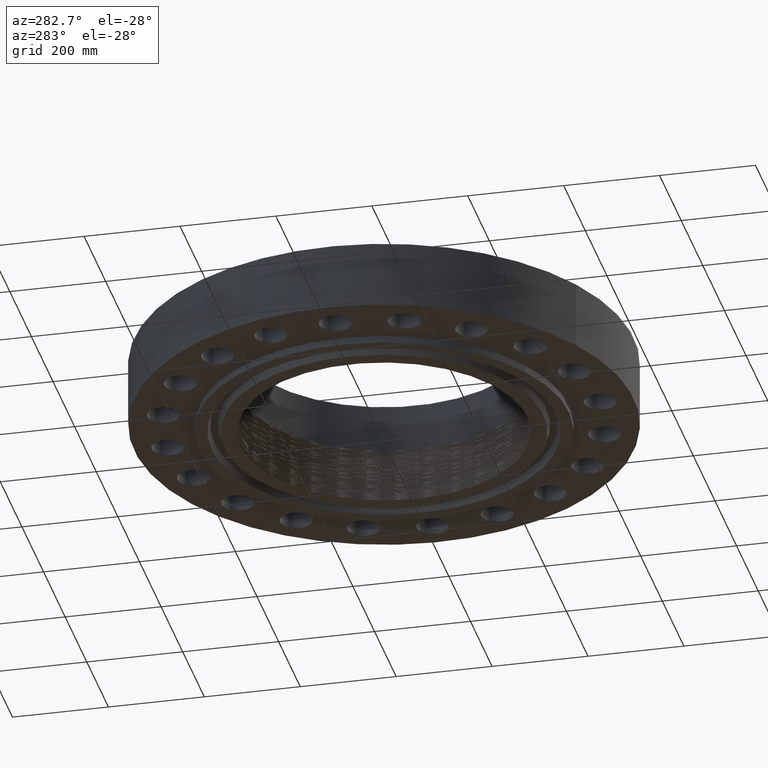
[diagram: clean part render]
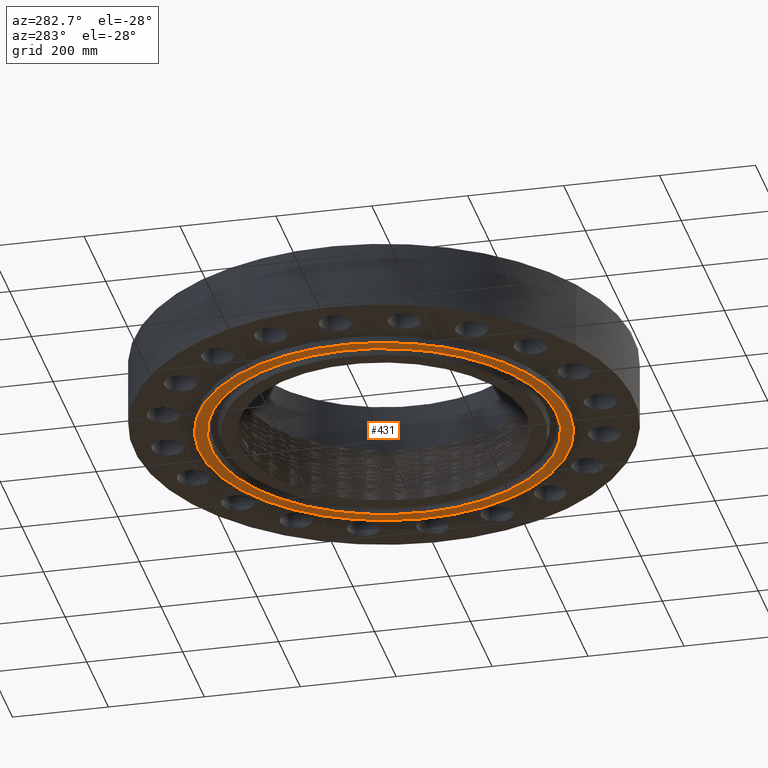
[diagram: same view with one face highlighted and labeled with its STEP entity id]
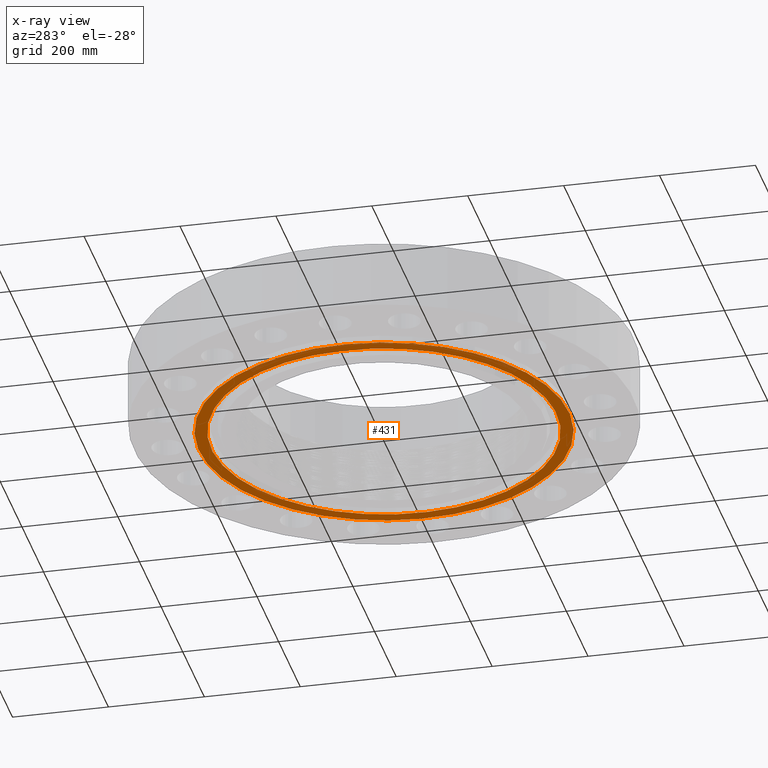
[diagram: x-ray of the same camera — body ghosted, the highlighted face saturated]
A machine part, auxiliary view. The second image highlights one B-rep face of the part: STEP entity #431.
The next image is the same camera in x-ray: the body ghosted, the highlighted face saturated — about 0% of this face is hidden behind the body in this view.
In plain terms, the highlighted planar face has unit normal (0, 0, -1).
Its self-contained STEP definition (entity closure, byte-faithful):
#198=AXIS2_PLACEMENT_3D('Plane Axis2P3D',#195,#196,#197) ;
#397=AXIS2_PLACEMENT_3D('Circle Axis2P3D',#395,#396,$) ;
#406=AXIS2_PLACEMENT_3D('Circle Axis2P3D',#404,#405,$) ;
#415=AXIS2_PLACEMENT_3D('Circle Axis2P3D',#413,#414,$) ;
#424=AXIS2_PLACEMENT_3D('Circle Axis2P3D',#422,#423,$) ;
#195=CARTESIAN_POINT('Axis2P3D Location',(0.,0.,-0.625000000003)) ;
#395=CARTESIAN_POINT('Axis2P3D Location',(0.,0.,-0.625000000003)) ;
#399=CARTESIAN_POINT('Vertex',(7.28127536758,13.3282851588,-0.625000000003)) ;
#401=CARTESIAN_POINT('Vertex',(-7.28127536758,-13.3282851588,-0.625000000003)) ;
#404=CARTESIAN_POINT('Axis2P3D Location',(0.,0.,-0.625000000003)) ;
#413=CARTESIAN_POINT('Axis2P3D Location',(5.59482469102E-016,-1.1189649382E-015,-0.625000000003)) ;
#417=CARTESIAN_POINT('Vertex',(6.78686778089,-12.4232781418,-0.625000000003)) ;
#419=CARTESIAN_POINT('Vertex',(-6.78686778089,12.4232781418,-0.625000000003)) ;
#422=CARTESIAN_POINT('Axis2P3D Location',(5.59482469102E-016,0.,-0.625000000003)) ;
#196=DIRECTION('Axis2P3D Direction',(0.,0.,-0.0393700787402)) ;
#197=DIRECTION('Axis2P3D XDirection',(0.0393700787402,0.,0.)) ;
#396=DIRECTION('Axis2P3D Direction',(0.,0.,-0.0393700787402)) ;
#405=DIRECTION('Axis2P3D Direction',(0.,0.,-0.0393700787402)) ;
#414=DIRECTION('Axis2P3D Direction',(0.,0.,-0.0393700787402)) ;
#423=DIRECTION('Axis2P3D Direction',(0.,0.,-0.0393700787402)) ;
#410=ORIENTED_EDGE('',*,*,#403,.T.) ;
#411=ORIENTED_EDGE('',*,*,#408,.T.) ;
#428=ORIENTED_EDGE('',*,*,#421,.F.) ;
#429=ORIENTED_EDGE('',*,*,#426,.F.) ;
#430=FACE_BOUND('',#427,.T.) ;
#431=ADVANCED_FACE('PartBody',(#412,#430),#199,.T.) ;
#398=CIRCLE('generated circle',#397,15.1875000001) ;
#407=CIRCLE('generated circle',#406,15.1875000001) ;
#416=CIRCLE('generated circle',#415,14.1562500001) ;
#425=CIRCLE('generated circle',#424,14.1562500001) ;
#403=EDGE_CURVE('',#400,#402,#398,.T.) ;
#408=EDGE_CURVE('',#402,#400,#407,.T.) ;
#421=EDGE_CURVE('',#418,#420,#416,.T.) ;
#426=EDGE_CURVE('',#420,#418,#425,.T.) ;
#409=EDGE_LOOP('',(#410,#411)) ;
#427=EDGE_LOOP('',(#428,#429)) ;
#412=FACE_OUTER_BOUND('',#409,.T.) ;
#199=PLANE('',#198) ;
#400=VERTEX_POINT('',#399) ;
#402=VERTEX_POINT('',#401) ;
#418=VERTEX_POINT('',#417) ;
#420=VERTEX_POINT('',#419) ;